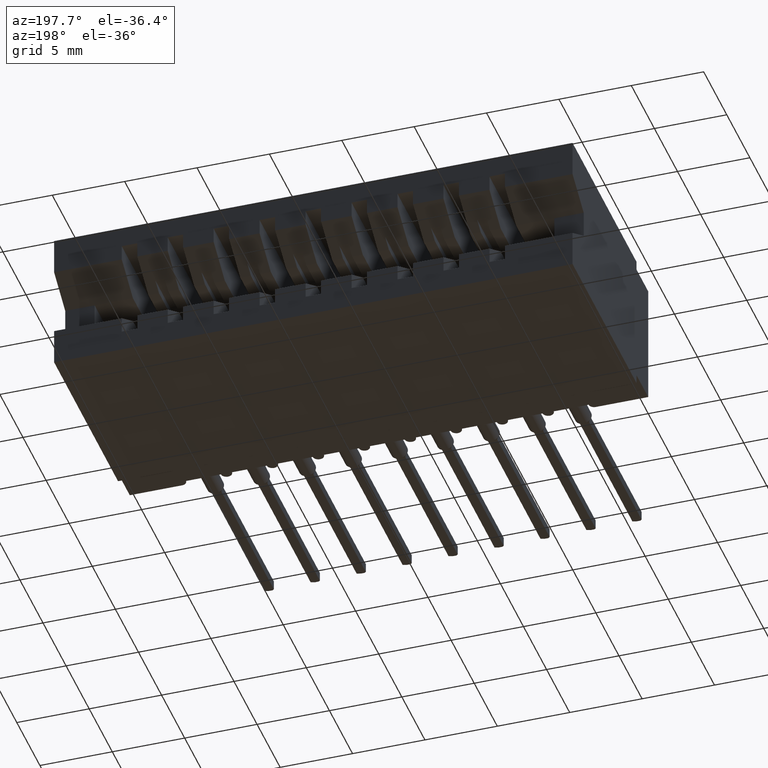
[diagram: clean part render]
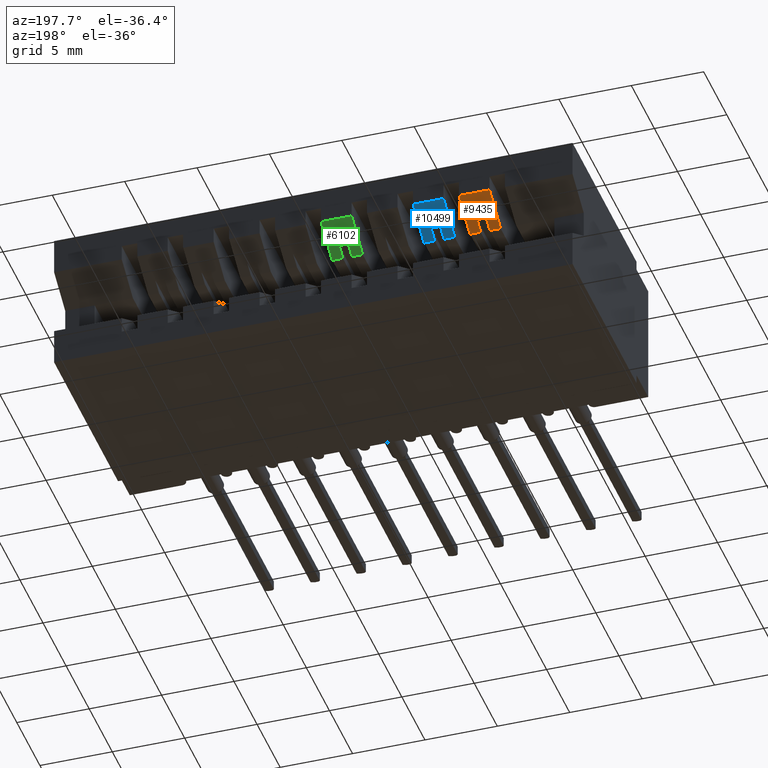
[diagram: same view with three faces highlighted in distinct colors, each labeled with its STEP entity id]
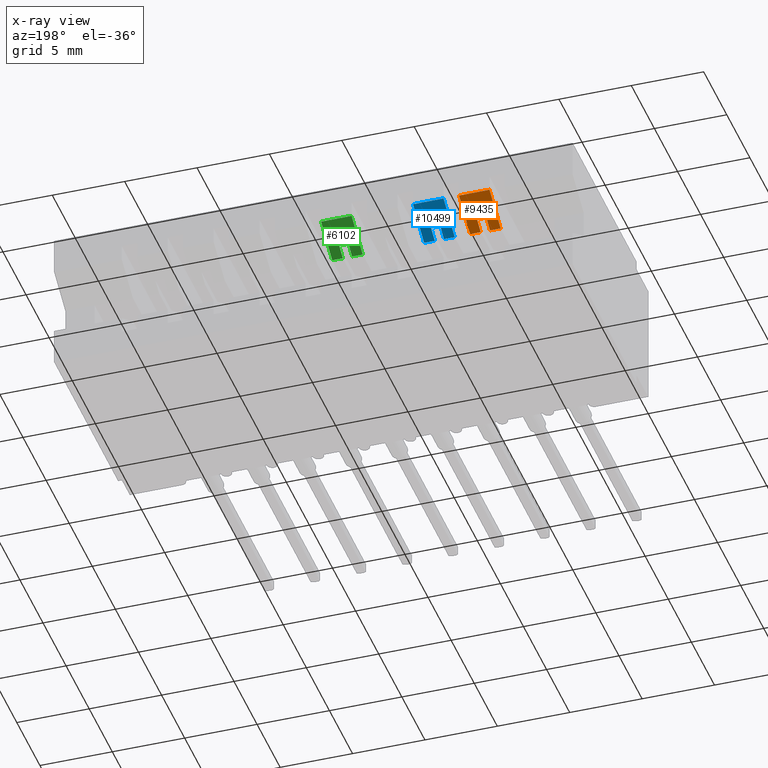
[diagram: x-ray of the same camera — body ghosted, the three highlighted faces saturated]
A machine part, auxiliary view with three faces highlighted in distinct colors.
The next image is the same camera in x-ray (body ghosted, the three faces saturated) — at least one of them is partly hidden behind the body in this view.
Their STEP definitions:

[orange] entity #9435 — the highlighted planar face has unit normal (0, 0.5194, -0.8545).
#264 = CARTESIAN_POINT ( 'NONE',  ( 0.2549999999999996159, 0.5812554112554112473, -0.1389999999999999292 ) ) ;
#402 = DIRECTION ( 'NONE',  ( -1.000000000000000000, 0.0000000000000000000, 0.0000000000000000000 ) ) ;
#828 = CARTESIAN_POINT ( 'NONE',  ( 1.409999999999999920, 0.5499999999999999334, -0.1580000000000000016 ) ) ;
#986 = VERTEX_POINT ( 'NONE', #12246 ) ;
#1652 = LINE ( 'NONE', #828, #4560 ) ;
#1661 = ORIENTED_EDGE ( 'NONE', *, *, #5868, .F. ) ;
#1990 = DIRECTION ( 'NONE',  ( -1.238924702507072202E-16, -0.8545023705661021207, -0.5194474936862355507 ) ) ;
#2102 = VECTOR ( 'NONE', #402, 39.37007874015748143 ) ;
#2593 = EDGE_CURVE ( 'NONE', #13331, #5519, #6238, .T. ) ;
#2626 = AXIS2_PLACEMENT_3D ( 'NONE', #3053, #6013, #11640 ) ;
#3053 = CARTESIAN_POINT ( 'NONE',  ( 1.409999999999999920, 0.6449999999999999067, -0.1002500000000000058 ) ) ;
#3936 = CARTESIAN_POINT ( 'NONE',  ( 1.409999999999999920, 0.6449999999999999067, -0.1002500000000000058 ) ) ;
#3948 = ORIENTED_EDGE ( 'NONE', *, *, #8480, .F. ) ;
#4137 = VECTOR ( 'NONE', #1990, 39.37007874015748854 ) ;
#4560 = VECTOR ( 'NONE', #9133, 39.37007874015748143 ) ;
#5064 = VECTOR ( 'NONE', #17642, 39.37007874015748854 ) ;
#5101 = EDGE_CURVE ( 'NONE', #15353, #10397, #1652, .T. ) ;
#5147 = ORIENTED_EDGE ( 'NONE', *, *, #7668, .F. ) ;
#5518 = CARTESIAN_POINT ( 'NONE',  ( 0.2799999999999995826, 0.6449999999999999067, -0.1002500000000000058 ) ) ;
#5519 = VERTEX_POINT ( 'NONE', #10494 ) ;
#5868 = EDGE_CURVE ( 'NONE', #7710, #8074, #6666, .T. ) ;
#6013 = DIRECTION ( 'NONE',  ( 0.0000000000000000000, 0.5194474936862356618, -0.8545023705661022317 ) ) ;
#6238 = LINE ( 'NONE', #11957, #4137 ) ;
#6537 = CARTESIAN_POINT ( 'NONE',  ( 0.3089999999999996083, 0.6450000000000001288, -0.1002499999999999364 ) ) ;
#6666 = LINE ( 'NONE', #11001, #10787 ) ;
#6770 = CARTESIAN_POINT ( 'NONE',  ( 0.2799999999999996381, 0.5499999999999999334, -0.1579999999999999738 ) ) ;
#7157 = ORIENTED_EDGE ( 'NONE', *, *, #2593, .F. ) ;
#7173 = CARTESIAN_POINT ( 'NONE',  ( 0.2799999999999996381, 0.5812554112554112473, -0.1389999999999999292 ) ) ;
#7668 = EDGE_CURVE ( 'NONE', #8074, #10397, #9953, .T. ) ;
#7710 = VERTEX_POINT ( 'NONE', #264 ) ;
#7835 = LINE ( 'NONE', #6537, #8778 ) ;
#7895 = EDGE_CURVE ( 'NONE', #17664, #15353, #7835, .T. ) ;
#8074 = VERTEX_POINT ( 'NONE', #7173 ) ;
#8480 = EDGE_CURVE ( 'NONE', #17664, #13331, #14011, .T. ) ;
#8778 = VECTOR ( 'NONE', #13564, 39.37007874015748854 ) ;
#8833 = LINE ( 'NONE', #11331, #5064 ) ;
#8971 = LINE ( 'NONE', #15842, #2102 ) ;
#9133 = DIRECTION ( 'NONE',  ( -1.000000000000000000, 0.0000000000000000000, 0.0000000000000000000 ) ) ;
#9435 = ADVANCED_FACE ( 'NONE', ( #15919 ), #15745, .T. ) ;
#9953 = LINE ( 'NONE', #5518, #18256 ) ;
#10397 = VERTEX_POINT ( 'NONE', #6770 ) ;
#10494 = CARTESIAN_POINT ( 'NONE',  ( 0.2259999999999997289, 0.5499999999999999334, -0.1580000000000000016 ) ) ;
#10787 = VECTOR ( 'NONE', #12026, 39.37007874015748143 ) ;
#11001 = CARTESIAN_POINT ( 'NONE',  ( 1.409999999999999920, 0.5812554112554112473, -0.1389999999999999292 ) ) ;
#11140 = DIRECTION ( 'NONE',  ( -1.000000000000000000, 0.0000000000000000000, 0.0000000000000000000 ) ) ;
#11158 = DIRECTION ( 'NONE',  ( 0.0000000000000000000, -0.8545023705661021207, -0.5194474936862355507 ) ) ;
#11331 = CARTESIAN_POINT ( 'NONE',  ( 0.2549999999999996159, 0.6449999999999999067, -0.1002500000000000058 ) ) ;
#11640 = DIRECTION ( 'NONE',  ( 0.0000000000000000000, 0.8545023705661021207, 0.5194474936862355507 ) ) ;
#11698 = CARTESIAN_POINT ( 'NONE',  ( 0.3089999999999996083, 0.6449999999999999067, -0.1002500000000000058 ) ) ;
#11957 = CARTESIAN_POINT ( 'NONE',  ( 0.2259999999999997289, 0.6450000000000001288, -0.1002499999999999364 ) ) ;
#12026 = DIRECTION ( 'NONE',  ( 1.000000000000000000, 0.0000000000000000000, 0.0000000000000000000 ) ) ;
#12246 = CARTESIAN_POINT ( 'NONE',  ( 0.2549999999999996159, 0.5499999999999999334, -0.1579999999999999738 ) ) ;
#13044 = ORIENTED_EDGE ( 'NONE', *, *, #13516, .T. ) ;
#13331 = VERTEX_POINT ( 'NONE', #16414 ) ;
#13516 = EDGE_CURVE ( 'NONE', #986, #5519, #8971, .T. ) ;
#13564 = DIRECTION ( 'NONE',  ( -1.238924702507072202E-16, -0.8545023705661021207, -0.5194474936862355507 ) ) ;
#14011 = LINE ( 'NONE', #3936, #17973 ) ;
#14302 = CARTESIAN_POINT ( 'NONE',  ( 0.3089999999999996083, 0.5499999999999999334, -0.1580000000000000016 ) ) ;
#14372 = ORIENTED_EDGE ( 'NONE', *, *, #17671, .F. ) ;
#14550 = ORIENTED_EDGE ( 'NONE', *, *, #5101, .T. ) ;
#15353 = VERTEX_POINT ( 'NONE', #14302 ) ;
#15745 = PLANE ( 'NONE',  #2626 ) ;
#15842 = CARTESIAN_POINT ( 'NONE',  ( 1.409999999999999920, 0.5499999999999999334, -0.1580000000000000016 ) ) ;
#15919 = FACE_OUTER_BOUND ( 'NONE', #18115, .T. ) ;
#16414 = CARTESIAN_POINT ( 'NONE',  ( 0.2259999999999996734, 0.6449999999999999067, -0.1002500000000000058 ) ) ;
#17642 = DIRECTION ( 'NONE',  ( 0.0000000000000000000, 0.8545023705661021207, 0.5194474936862355507 ) ) ;
#17664 = VERTEX_POINT ( 'NONE', #11698 ) ;
#17671 = EDGE_CURVE ( 'NONE', #986, #7710, #8833, .T. ) ;
#17973 = VECTOR ( 'NONE', #11140, 39.37007874015748143 ) ;
#18114 = ORIENTED_EDGE ( 'NONE', *, *, #7895, .T. ) ;
#18115 = EDGE_LOOP ( 'NONE', ( #5147, #1661, #14372, #13044, #7157, #3948, #18114, #14550 ) ) ;
#18256 = VECTOR ( 'NONE', #11158, 39.37007874015748854 ) ;

[blue] entity #10499 — the highlighted planar face has unit normal (0, 0.5194, -0.8545).
#276 = VECTOR ( 'NONE', #13108, 39.37007874015748854 ) ;
#357 = CARTESIAN_POINT ( 'NONE',  ( 0.4049999999999996381, 0.5812554112554112473, -0.1389999999999999292 ) ) ;
#481 = DIRECTION ( 'NONE',  ( 0.0000000000000000000, 0.5194474936862356618, -0.8545023705661022317 ) ) ;
#548 = AXIS2_PLACEMENT_3D ( 'NONE', #4714, #481, #7136 ) ;
#1276 = LINE ( 'NONE', #14028, #9622 ) ;
#1295 = DIRECTION ( 'NONE',  ( 0.0000000000000000000, 0.8545023705661021207, 0.5194474936862355507 ) ) ;
#1383 = EDGE_CURVE ( 'NONE', #2920, #10806, #16748, .T. ) ;
#1732 = VERTEX_POINT ( 'NONE', #8111 ) ;
#2095 = VECTOR ( 'NONE', #11926, 39.37007874015748143 ) ;
#2319 = LINE ( 'NONE', #13590, #17063 ) ;
#2343 = CARTESIAN_POINT ( 'NONE',  ( 0.4339999999999996638, 0.5499999999999999334, -0.1580000000000000016 ) ) ;
#2687 = ORIENTED_EDGE ( 'NONE', *, *, #13795, .T. ) ;
#2762 = VERTEX_POINT ( 'NONE', #17817 ) ;
#2897 = ORIENTED_EDGE ( 'NONE', *, *, #1383, .F. ) ;
#2920 = VERTEX_POINT ( 'NONE', #17862 ) ;
#3496 = VECTOR ( 'NONE', #7061, 39.37007874015748143 ) ;
#4062 = ORIENTED_EDGE ( 'NONE', *, *, #12061, .F. ) ;
#4063 = DIRECTION ( 'NONE',  ( -1.238924702507072202E-16, -0.8545023705661021207, -0.5194474936862355507 ) ) ;
#4361 = CARTESIAN_POINT ( 'NONE',  ( 0.4339999999999996638, 0.6449999999999999067, -0.1002500000000000058 ) ) ;
#4525 = PLANE ( 'NONE',  #548 ) ;
#4714 = CARTESIAN_POINT ( 'NONE',  ( 1.409999999999999920, 0.6449999999999999067, -0.1002500000000000058 ) ) ;
#4807 = DIRECTION ( 'NONE',  ( -1.238924702507072202E-16, -0.8545023705661021207, -0.5194474936862355507 ) ) ;
#5537 = CARTESIAN_POINT ( 'NONE',  ( 0.3799999999999996159, 0.6449999999999999067, -0.1002500000000000058 ) ) ;
#6296 = CARTESIAN_POINT ( 'NONE',  ( 1.409999999999999920, 0.5812554112554112473, -0.1389999999999999292 ) ) ;
#6479 = EDGE_CURVE ( 'NONE', #2920, #15917, #1276, .T. ) ;
#6535 = VERTEX_POINT ( 'NONE', #357 ) ;
#6949 = CARTESIAN_POINT ( 'NONE',  ( 1.409999999999999920, 0.5499999999999999334, -0.1580000000000000016 ) ) ;
#7061 = DIRECTION ( 'NONE',  ( -1.000000000000000000, 0.0000000000000000000, 0.0000000000000000000 ) ) ;
#7136 = DIRECTION ( 'NONE',  ( 0.0000000000000000000, 0.8545023705661021207, 0.5194474936862355507 ) ) ;
#7476 = LINE ( 'NONE', #7654, #276 ) ;
#7654 = CARTESIAN_POINT ( 'NONE',  ( 0.4049999999999996381, 0.6449999999999999067, -0.1002500000000000058 ) ) ;
#8111 = CARTESIAN_POINT ( 'NONE',  ( 0.3509999999999995901, 0.6449999999999999067, -0.1002500000000000058 ) ) ;
#8244 = LINE ( 'NONE', #6949, #10583 ) ;
#8404 = CARTESIAN_POINT ( 'NONE',  ( 0.3799999999999996159, 0.5812554112554112473, -0.1389999999999999292 ) ) ;
#8636 = ORIENTED_EDGE ( 'NONE', *, *, #8908, .F. ) ;
#8908 = EDGE_CURVE ( 'NONE', #14600, #1732, #18271, .T. ) ;
#9599 = EDGE_CURVE ( 'NONE', #1732, #15917, #2319, .T. ) ;
#9622 = VECTOR ( 'NONE', #11154, 39.37007874015748143 ) ;
#10499 = ADVANCED_FACE ( 'NONE', ( #11464 ), #4525, .T. ) ;
#10583 = VECTOR ( 'NONE', #12678, 39.37007874015748143 ) ;
#10806 = VERTEX_POINT ( 'NONE', #8404 ) ;
#11154 = DIRECTION ( 'NONE',  ( -1.000000000000000000, 0.0000000000000000000, 0.0000000000000000000 ) ) ;
#11464 = FACE_OUTER_BOUND ( 'NONE', #14782, .T. ) ;
#11478 = ORIENTED_EDGE ( 'NONE', *, *, #16980, .F. ) ;
#11516 = EDGE_CURVE ( 'NONE', #16578, #2762, #8244, .T. ) ;
#11926 = DIRECTION ( 'NONE',  ( 1.000000000000000000, 0.0000000000000000000, 0.0000000000000000000 ) ) ;
#12061 = EDGE_CURVE ( 'NONE', #6535, #2762, #7476, .T. ) ;
#12578 = ORIENTED_EDGE ( 'NONE', *, *, #11516, .T. ) ;
#12678 = DIRECTION ( 'NONE',  ( -1.000000000000000000, 0.0000000000000000000, 0.0000000000000000000 ) ) ;
#12802 = ORIENTED_EDGE ( 'NONE', *, *, #9599, .F. ) ;
#13108 = DIRECTION ( 'NONE',  ( 0.0000000000000000000, -0.8545023705661021207, -0.5194474936862355507 ) ) ;
#13420 = VECTOR ( 'NONE', #1295, 39.37007874015748854 ) ;
#13590 = CARTESIAN_POINT ( 'NONE',  ( 0.3509999999999995901, 0.6450000000000001288, -0.1002499999999999364 ) ) ;
#13795 = EDGE_CURVE ( 'NONE', #14600, #16578, #18148, .T. ) ;
#14028 = CARTESIAN_POINT ( 'NONE',  ( 1.409999999999999920, 0.5499999999999999334, -0.1580000000000000016 ) ) ;
#14485 = VECTOR ( 'NONE', #4063, 39.37007874015748854 ) ;
#14600 = VERTEX_POINT ( 'NONE', #4361 ) ;
#14782 = EDGE_LOOP ( 'NONE', ( #4062, #11478, #2897, #16464, #12802, #8636, #2687, #12578 ) ) ;
#15085 = CARTESIAN_POINT ( 'NONE',  ( 0.3509999999999995901, 0.5499999999999999334, -0.1580000000000000016 ) ) ;
#15917 = VERTEX_POINT ( 'NONE', #15085 ) ;
#16464 = ORIENTED_EDGE ( 'NONE', *, *, #6479, .T. ) ;
#16578 = VERTEX_POINT ( 'NONE', #2343 ) ;
#16748 = LINE ( 'NONE', #5537, #13420 ) ;
#16980 = EDGE_CURVE ( 'NONE', #10806, #6535, #17509, .T. ) ;
#17063 = VECTOR ( 'NONE', #4807, 39.37007874015748854 ) ;
#17509 = LINE ( 'NONE', #6296, #2095 ) ;
#17817 = CARTESIAN_POINT ( 'NONE',  ( 0.4049999999999996381, 0.5499999999999999334, -0.1579999999999999738 ) ) ;
#17862 = CARTESIAN_POINT ( 'NONE',  ( 0.3799999999999996159, 0.5499999999999999334, -0.1579999999999999738 ) ) ;
#18148 = LINE ( 'NONE', #18239, #14485 ) ;
#18172 = CARTESIAN_POINT ( 'NONE',  ( 1.409999999999999920, 0.6449999999999999067, -0.1002500000000000058 ) ) ;
#18239 = CARTESIAN_POINT ( 'NONE',  ( 0.4339999999999996638, 0.6450000000000001288, -0.1002499999999999364 ) ) ;
#18271 = LINE ( 'NONE', #18172, #3496 ) ;

[green] entity #6102 — the highlighted planar face has unit normal (0, 0.5194, -0.8545).
#69 = DIRECTION ( 'NONE',  ( 0.0000000000000000000, -0.8545023705661021207, -0.5194474936862355507 ) ) ;
#97 = LINE ( 'NONE', #5721, #14006 ) ;
#98 = CARTESIAN_POINT ( 'NONE',  ( 1.409999999999999920, 0.6449999999999999067, -0.1002500000000000058 ) ) ;
#248 = DIRECTION ( 'NONE',  ( -1.000000000000000000, 0.0000000000000000000, 0.0000000000000000000 ) ) ;
#326 = CARTESIAN_POINT ( 'NONE',  ( 0.6839999999999997193, 0.6449999999999999067, -0.1002500000000000474 ) ) ;
#581 = ORIENTED_EDGE ( 'NONE', *, *, #17576, .F. ) ;
#917 = CARTESIAN_POINT ( 'NONE',  ( 1.409999999999999920, 0.6449999999999999067, -0.1002500000000000058 ) ) ;
#924 = VECTOR ( 'NONE', #248, 39.37007874015748143 ) ;
#1039 = VERTEX_POINT ( 'NONE', #1502 ) ;
#1502 = CARTESIAN_POINT ( 'NONE',  ( 0.6009999999999996456, 0.5499999999999999334, -0.1580000000000000016 ) ) ;
#1583 = EDGE_CURVE ( 'NONE', #11303, #1039, #97, .T. ) ;
#1819 = CARTESIAN_POINT ( 'NONE',  ( 0.6549999999999995826, 0.5499999999999999334, -0.1579999999999999738 ) ) ;
#1929 = VERTEX_POINT ( 'NONE', #13004 ) ;
#2262 = DIRECTION ( 'NONE',  ( 1.000000000000000000, 0.0000000000000000000, 0.0000000000000000000 ) ) ;
#2373 = ORIENTED_EDGE ( 'NONE', *, *, #6795, .T. ) ;
#2627 = LINE ( 'NONE', #5388, #9306 ) ;
#2866 = PLANE ( 'NONE',  #9317 ) ;
#3278 = ORIENTED_EDGE ( 'NONE', *, *, #9144, .F. ) ;
#3405 = VECTOR ( 'NONE', #13669, 39.37007874015748143 ) ;
#3416 = DIRECTION ( 'NONE',  ( 0.0000000000000000000, 0.5194474936862356618, -0.8545023705661022317 ) ) ;
#3664 = EDGE_LOOP ( 'NONE', ( #581, #15756, #17168, #9440, #3278, #10533, #2373, #5392 ) ) ;
#3939 = EDGE_CURVE ( 'NONE', #4943, #7033, #2627, .T. ) ;
#3965 = LINE ( 'NONE', #6749, #924 ) ;
#4291 = DIRECTION ( 'NONE',  ( -1.238924702507072202E-16, -0.8545023705661021207, -0.5194474936862355507 ) ) ;
#4943 = VERTEX_POINT ( 'NONE', #18234 ) ;
#5117 = EDGE_CURVE ( 'NONE', #12961, #1929, #16459, .T. ) ;
#5388 = CARTESIAN_POINT ( 'NONE',  ( 1.409999999999999920, 0.5812554112554112473, -0.1389999999999999292 ) ) ;
#5392 = ORIENTED_EDGE ( 'NONE', *, *, #15920, .T. ) ;
#5551 = VECTOR ( 'NONE', #7789, 39.37007874015748854 ) ;
#5721 = CARTESIAN_POINT ( 'NONE',  ( 1.409999999999999920, 0.5499999999999999334, -0.1580000000000000016 ) ) ;
#6102 = ADVANCED_FACE ( 'NONE', ( #15554 ), #2866, .T. ) ;
#6245 = VECTOR ( 'NONE', #69, 39.37007874015748854 ) ;
#6749 = CARTESIAN_POINT ( 'NONE',  ( 1.409999999999999920, 0.5499999999999999334, -0.1580000000000000016 ) ) ;
#6795 = EDGE_CURVE ( 'NONE', #12961, #11279, #18287, .T. ) ;
#7033 = VERTEX_POINT ( 'NONE', #14564 ) ;
#7789 = DIRECTION ( 'NONE',  ( -1.238924702507072202E-16, -0.8545023705661021207, -0.5194474936862355507 ) ) ;
#8931 = LINE ( 'NONE', #12914, #15996 ) ;
#9144 = EDGE_CURVE ( 'NONE', #1929, #1039, #9170, .T. ) ;
#9170 = LINE ( 'NONE', #16400, #5551 ) ;
#9306 = VECTOR ( 'NONE', #2262, 39.37007874015748143 ) ;
#9317 = AXIS2_PLACEMENT_3D ( 'NONE', #98, #3416, #13123 ) ;
#9440 = ORIENTED_EDGE ( 'NONE', *, *, #1583, .T. ) ;
#10227 = VECTOR ( 'NONE', #4291, 39.37007874015748854 ) ;
#10533 = ORIENTED_EDGE ( 'NONE', *, *, #5117, .F. ) ;
#11279 = VERTEX_POINT ( 'NONE', #11506 ) ;
#11303 = VERTEX_POINT ( 'NONE', #14199 ) ;
#11360 = DIRECTION ( 'NONE',  ( -1.000000000000000000, 0.0000000000000000000, 0.0000000000000000000 ) ) ;
#11506 = CARTESIAN_POINT ( 'NONE',  ( 0.6839999999999997193, 0.5499999999999999334, -0.1580000000000000016 ) ) ;
#12724 = LINE ( 'NONE', #15520, #6245 ) ;
#12914 = CARTESIAN_POINT ( 'NONE',  ( 0.6299999999999995604, 0.6449999999999999067, -0.1002500000000000058 ) ) ;
#12961 = VERTEX_POINT ( 'NONE', #326 ) ;
#13004 = CARTESIAN_POINT ( 'NONE',  ( 0.6009999999999996456, 0.6449999999999999067, -0.1002500000000000474 ) ) ;
#13123 = DIRECTION ( 'NONE',  ( 0.0000000000000000000, 0.8545023705661021207, 0.5194474936862355507 ) ) ;
#13669 = DIRECTION ( 'NONE',  ( -1.000000000000000000, 0.0000000000000000000, 0.0000000000000000000 ) ) ;
#14006 = VECTOR ( 'NONE', #11360, 39.37007874015748143 ) ;
#14094 = CARTESIAN_POINT ( 'NONE',  ( 0.6839999999999997193, 0.6450000000000001288, -0.1002499999999999641 ) ) ;
#14199 = CARTESIAN_POINT ( 'NONE',  ( 0.6299999999999995604, 0.5499999999999999334, -0.1579999999999999738 ) ) ;
#14367 = EDGE_CURVE ( 'NONE', #11303, #4943, #8931, .T. ) ;
#14564 = CARTESIAN_POINT ( 'NONE',  ( 0.6549999999999995826, 0.5812554112554112473, -0.1389999999999999292 ) ) ;
#15520 = CARTESIAN_POINT ( 'NONE',  ( 0.6549999999999995826, 0.6449999999999999067, -0.1002500000000000058 ) ) ;
#15554 = FACE_OUTER_BOUND ( 'NONE', #3664, .T. ) ;
#15756 = ORIENTED_EDGE ( 'NONE', *, *, #3939, .F. ) ;
#15920 = EDGE_CURVE ( 'NONE', #11279, #17625, #3965, .T. ) ;
#15996 = VECTOR ( 'NONE', #17193, 39.37007874015748854 ) ;
#16400 = CARTESIAN_POINT ( 'NONE',  ( 0.6009999999999996456, 0.6450000000000001288, -0.1002499999999999641 ) ) ;
#16459 = LINE ( 'NONE', #917, #3405 ) ;
#17168 = ORIENTED_EDGE ( 'NONE', *, *, #14367, .F. ) ;
#17193 = DIRECTION ( 'NONE',  ( 0.0000000000000000000, 0.8545023705661021207, 0.5194474936862355507 ) ) ;
#17576 = EDGE_CURVE ( 'NONE', #7033, #17625, #12724, .T. ) ;
#17625 = VERTEX_POINT ( 'NONE', #1819 ) ;
#18234 = CARTESIAN_POINT ( 'NONE',  ( 0.6299999999999995604, 0.5812554112554112473, -0.1389999999999999292 ) ) ;
#18287 = LINE ( 'NONE', #14094, #10227 ) ;